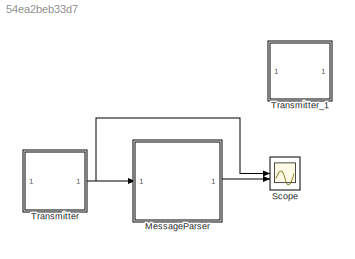
MODEL slx_54ea2beb33d7
KIND model
CONFIG AbsTol = auto
CONFIG EnableMultiTasking = off
CONFIG FixedStep = .1
CONFIG MaxStep = auto
CONFIG MinStep = auto
CONFIG RelTol = 1e-3
CONFIG SampleTimeConstraint = Unconstrained
CONFIG SolverName = FixedStepAuto
CONFIG StartTime = 0.0
CONFIG StopTime = 12.5
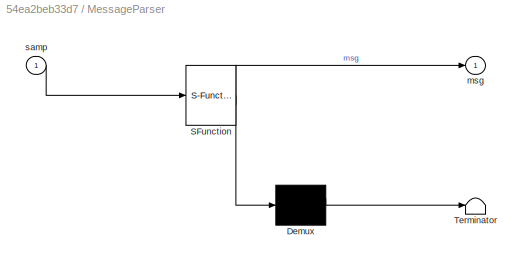
BLOCK [SubSystem] MessageParser
  ErrorFcn = Stateflow.Translate.translate
  PermitHierarchicalResolution = ExplicitOnly
  SFBlockType = Chart
  TreatAsAtomicUnit = on
BLOCK [Demux] MessageParser/ Demux 
  Outputs = 1
BLOCK [S-Function] MessageParser/ SFunction 
  EnableBusSupport = on
  FunctionName = sf_sfun
  PortCounts = [1 2]
  SFcnIsStateOwnerBlock = off
  SFunctionDeploymentMode = off
  Tag = Stateflow S-Function 1
BLOCK [Terminator] MessageParser/ Terminator 
BLOCK [Outport] MessageParser/msg
BLOCK [Inport] MessageParser/samp
BLOCK [Scope] Scope
  Floating = off
  NumInputPorts = 2
  ScopeSpecificationString = Simulink.scopes.TimeScopeBlockCfg('CurrentConfiguration', extmgr.ConfigurationSet(extmgr.Configuration('Core','General UI',true),extmgr.Configuration('Core','Source UI',true),extmgr.Configuration('Sources','WiredSimulink',true),extmgr.Configuration('Visuals','Time Domain',true,'SerializedDisplays',{struct('MinYLimReal','-0.375','MaxYLimReal','3.375','YLabelReal','','MinYLimMag','0.00000','MaxYLimM...<+1364ch>
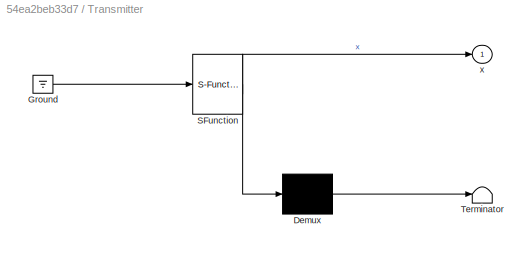
BLOCK [SubSystem] Transmitter
  ErrorFcn = Stateflow.Translate.translate
  PermitHierarchicalResolution = ExplicitOnly
  SFBlockType = Chart
  TreatAsAtomicUnit = on
BLOCK [Demux] Transmitter/ Demux 
  Outputs = 1
BLOCK [Ground] Transmitter/ Ground 
BLOCK [S-Function] Transmitter/ SFunction 
  EnableBusSupport = on
  FunctionName = sf_sfun
  PortCounts = [1 2]
  SFcnIsStateOwnerBlock = off
  SFunctionDeploymentMode = off
  Tag = Stateflow S-Function 4
BLOCK [Terminator] Transmitter/ Terminator 
BLOCK [Outport] Transmitter/x
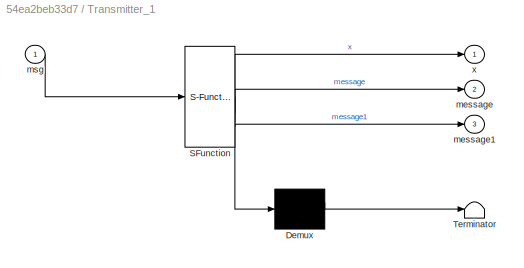
BLOCK [SubSystem] Transmitter_1
  Commented = on
  ErrorFcn = Stateflow.Translate.translate
  PermitHierarchicalResolution = ExplicitOnly
  SFBlockType = Chart
  TreatAsAtomicUnit = on
BLOCK [Demux] Transmitter_1/ Demux 
  Outputs = 1
BLOCK [S-Function] Transmitter_1/ SFunction 
  EnableBusSupport = on
  FunctionName = sf_sfun
  PortCounts = [1 4]
  SFcnIsStateOwnerBlock = off
  SFunctionDeploymentMode = off
  Tag = Stateflow S-Function 3
BLOCK [Terminator] Transmitter_1/ Terminator 
BLOCK [Outport] Transmitter_1/message
  Port = 2
BLOCK [Outport] Transmitter_1/message1
  Port = 3
BLOCK [Inport] Transmitter_1/msg
BLOCK [Outport] Transmitter_1/x
LINE MessageParser:1 -> Scope:2
NET Transmitter:1 -> MessageParser:1, Scope:1
note: NET lines group one-source signal fan-out (src -> all destinations, sorted); 1:1 wires keep LINE
CHART MessageParser states=12 transitions=23
  STATE_LABEL 'errorState\nmsg=3'
  STATE_LABEL 'SYNCH'
  STATE_LABEL 'synchronize'
  STATE_LABEL 'synchronizeSample'
  STATE_LABEL '[samp==1]{ctr = ctr + 1, onectr = onectr + 1}'
  STATE_LABEL '[samp==0]{ctr = ctr + 1}'
  STATE_LABEL 'startSample'
  STATE_LABEL '[ctr==3&&onectr<3&&samp==0]{ctr=0, onectr=0, zeroctr=0}'
  STATE_LABEL '[onectr>=3&&ctr==4&&samp==1]{bitctr = bitctr + 1;onectr=0;zeroctr=0;ctr=0}'
  STATE_LABEL '[samp==0]{zeroctr = zeroctr + 1, ctr = ctr + 1}'
  STATE_LABEL '[bitctr == preambleLen]{ctr=0, onectr=0}'
  STATE_LABEL '[zeroctr>=4&&ctr==5]{zeroctr=0,ctr=0}'
  STATE_LABEL '[samp==1]{ctr = ctr + 1}'
  STATE_LABEL 'synchronize'
  STATE_LABEL 'synchronizeSample'
  STATE_LABEL '[samp==1]{ctr = ctr + 1, onectr = onectr + 1}'
  STATE_LABEL '[samp==0]{ctr = ctr + 1}'
  STATE_LABEL 'synchronizeSample'
  STATE_LABEL 'startSample'
  STATE_LABEL 'MESSAGE'
  STATE_LABEL 'msgbytes\n'
  STATE_LABEL 'msgSample\n'
  STATE_LABEL '[samp==0]{zeroctr = zeroctr + 1, ctr = ctr + 1}'
  STATE_LABEL '[samp==1]{ctr = ctr + 1,onectr = onectr + 1}'
  STATE_LABEL 'printOne\nmsg=1'
  STATE_LABEL 'printZero1\nmsg=0'
  STATE_LABEL '[ctr==4&&(onectr+samp>=4)]{bitctr = bitctr + 1}'
  STATE_LABEL '{onectr=0;zeroctr=0;ctr=0;msg=3}'
  STATE_LABEL '[ctr==4&&(onectr+samp)<=1]{bitctr = bitctr + 1}'
  STATE_LABEL '{onectr=0;zeroctr=0;ctr=0;msg=3}'
  STATE_LABEL 'msgbytes\n'
  STATE_LABEL 'msgSample\n'
  STATE_LABEL '[samp==0]{zeroctr = zeroctr + 1, ctr = ctr + 1}'
  STATE_LABEL '[samp==1]{ctr = ctr + 1,onectr = onectr + 1}'
  STATE_LABEL 'msgSample\n'
  STATE_LABEL 'printOne\nmsg=1'
  STATE_LABEL 'printZero1\nmsg=0'
  STATE_LABEL 'CRC'
  STATE_LABEL 'crcSample\n'
  STATE_LABEL '[samp==0]{ctr = ctr + 1;zeroctr = zeroctr + 1}'
CHART Transmitter_1 states=6 transitions=10
  STATE_LABEL 'preamble\nx = 11111111'
  STATE_LABEL 'bitstream0\nx = 0'
  STATE_LABEL 'bitstream\nx = msg(y)'
  STATE_LABEL 'start\nx = 0'
  STATE_LABEL 'crc\nx = 0'
  STATE_LABEL 'TODO: build the CRC function in Matlab and link'
CHART Transmitter states=5 transitions=13
  STATE_LABEL 'bitstream1\nx = 1'
  STATE_LABEL 'bitstream0\nx = 0'
  STATE_LABEL 'preamble\nx = 1'
  STATE_LABEL 'start\nx = 0'
  STATE_LABEL 'crc\nx = 0'
CHART  states=0 transitions=0
CHART  states=0 transitions=0
CHART  states=0 transitions=0
